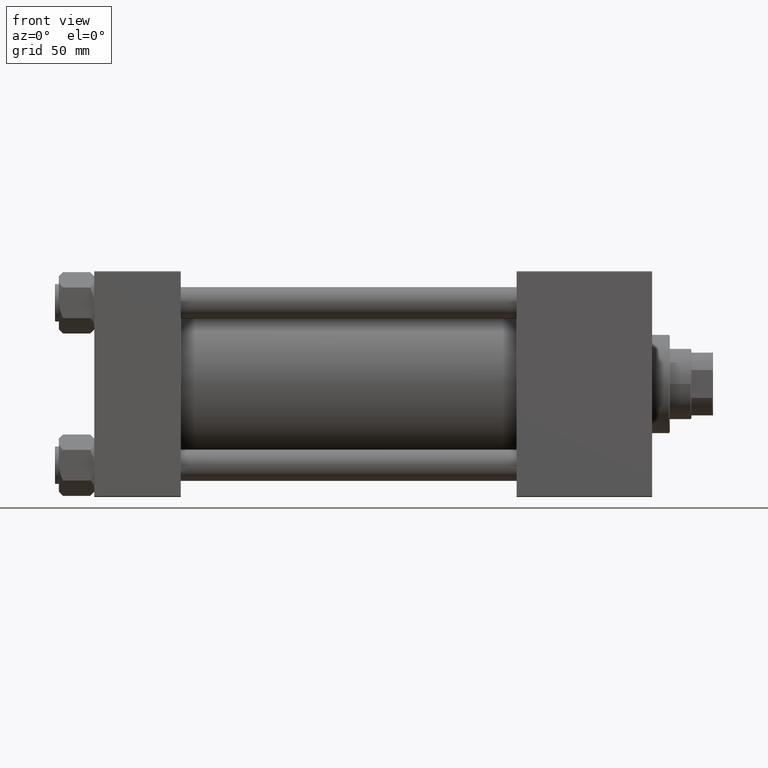
[diagram: clean part render]
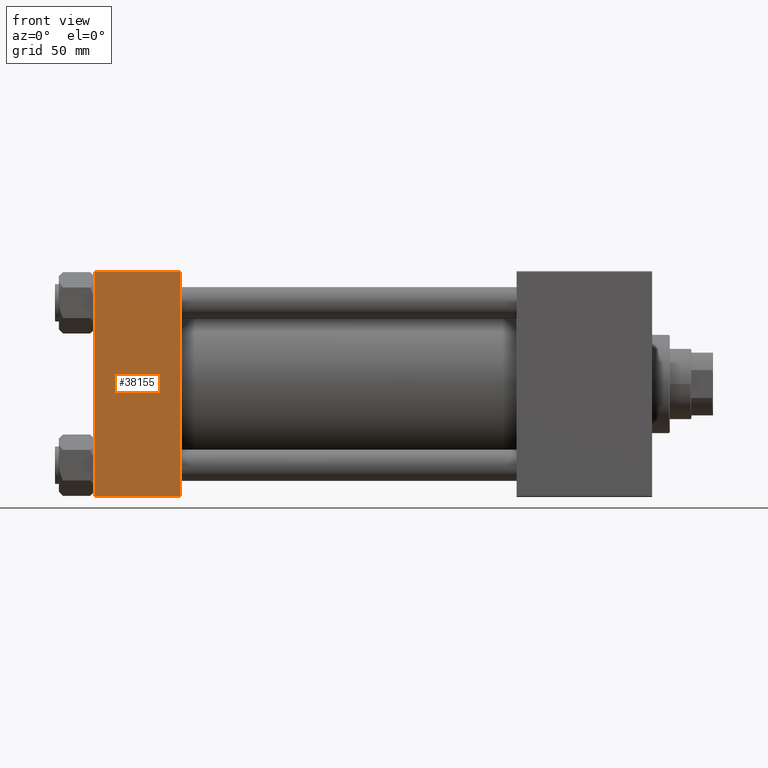
[diagram: same view with one face highlighted and labeled with its STEP entity id]
A machine part, front view. The second image highlights one B-rep face of the part: STEP entity #38155.
In plain terms, the highlighted planar face has unit normal (0, 1, 0).
Its self-contained STEP definition (entity closure, byte-faithful):
#85 = DIRECTION ( 'NONE',  ( 0.000000000000000000, 0.000000000000000000, -1.000000000000000000 ) ) ;
#173 = ORIENTED_EDGE ( 'NONE', *, *, #5139, .T. ) ;
#1034 = CARTESIAN_POINT ( 'NONE',  ( 0.000000000000000000, -57.50000000000000711, 57.00000000000000711 ) ) ;
#4057 = LINE ( 'NONE', #26753, #17559 ) ;
#4811 = DIRECTION ( 'NONE',  ( 0.000000000000000000, 0.000000000000000000, -1.000000000000000000 ) ) ;
#5139 = EDGE_CURVE ( 'NONE', #18550, #29618, #10260, .T. ) ;
#9088 = EDGE_CURVE ( 'NONE', #46615, #18550, #36678, .T. ) ;
#9894 = EDGE_CURVE ( 'NONE', #50744, #46615, #4057, .T. ) ;
#10260 = LINE ( 'NONE', #21339, #28908 ) ;
#10416 = PLANE ( 'NONE',  #50014 ) ;
#16001 = CARTESIAN_POINT ( 'NONE',  ( 44.00000000000000000, -57.50000000000000711, 57.49999999999999289 ) ) ;
#16447 = ORIENTED_EDGE ( 'NONE', *, *, #9894, .T. ) ;
#17559 = VECTOR ( 'NONE', #32047, 1000.000000000000000 ) ;
#18550 = VERTEX_POINT ( 'NONE', #24895 ) ;
#21339 = CARTESIAN_POINT ( 'NONE',  ( 44.00000000000000000, -57.50000000000000711, -57.00000000000000711 ) ) ;
#21977 = ORIENTED_EDGE ( 'NONE', *, *, #46309, .F. ) ;
#24895 = CARTESIAN_POINT ( 'NONE',  ( 0.000000000000000000, -57.50000000000000711, -57.00000000000000711 ) ) ;
#26753 = CARTESIAN_POINT ( 'NONE',  ( 44.00000000000000000, -57.50000000000000711, 57.00000000000000711 ) ) ;
#27441 = VECTOR ( 'NONE', #4811, 1000.000000000000000 ) ;
#27990 = CARTESIAN_POINT ( 'NONE',  ( 44.00000000000000000, -57.50000000000000711, 57.00000000000000711 ) ) ;
#28908 = VECTOR ( 'NONE', #37526, 1000.000000000000000 ) ;
#29618 = VERTEX_POINT ( 'NONE', #48368 ) ;
#32047 = DIRECTION ( 'NONE',  ( -1.000000000000000000, 0.000000000000000000, 0.000000000000000000 ) ) ;
#35618 = ORIENTED_EDGE ( 'NONE', *, *, #9088, .T. ) ;
#35803 = LINE ( 'NONE', #16001, #47857 ) ;
#35910 = CARTESIAN_POINT ( 'NONE',  ( 0.000000000000000000, -57.50000000000000711, 57.49999999999999289 ) ) ;
#36678 = LINE ( 'NONE', #35910, #27441 ) ;
#37526 = DIRECTION ( 'NONE',  ( 1.000000000000000000, 0.000000000000000000, 0.000000000000000000 ) ) ;
#38155 = ADVANCED_FACE ( 'NONE', ( #42042 ), #10416, .F. ) ;
#38180 = DIRECTION ( 'NONE',  ( -0.000000000000000000, 1.000000000000000000, 0.000000000000000000 ) ) ;
#42042 = FACE_OUTER_BOUND ( 'NONE', #49070, .T. ) ;
#45134 = CARTESIAN_POINT ( 'NONE',  ( 44.00000000000000000, -57.50000000000000711, 57.49999999999999289 ) ) ;
#46309 = EDGE_CURVE ( 'NONE', #50744, #29618, #35803, .T. ) ;
#46615 = VERTEX_POINT ( 'NONE', #1034 ) ;
#47857 = VECTOR ( 'NONE', #85, 1000.000000000000000 ) ;
#48368 = CARTESIAN_POINT ( 'NONE',  ( 44.00000000000000000, -57.50000000000000711, -57.00000000000000711 ) ) ;
#49070 = EDGE_LOOP ( 'NONE', ( #35618, #173, #21977, #16447 ) ) ;
#49979 = DIRECTION ( 'NONE',  ( 0.000000000000000000, -0.000000000000000000, 1.000000000000000000 ) ) ;
#50014 = AXIS2_PLACEMENT_3D ( 'NONE', #45134, #38180, #49979 ) ;
#50744 = VERTEX_POINT ( 'NONE', #27990 ) ;